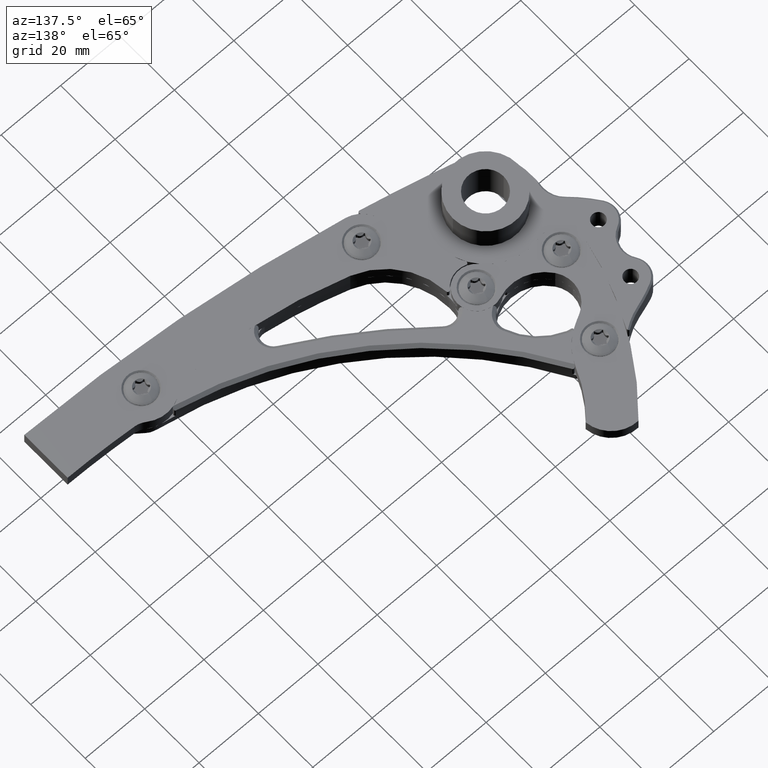
[diagram: clean part render]
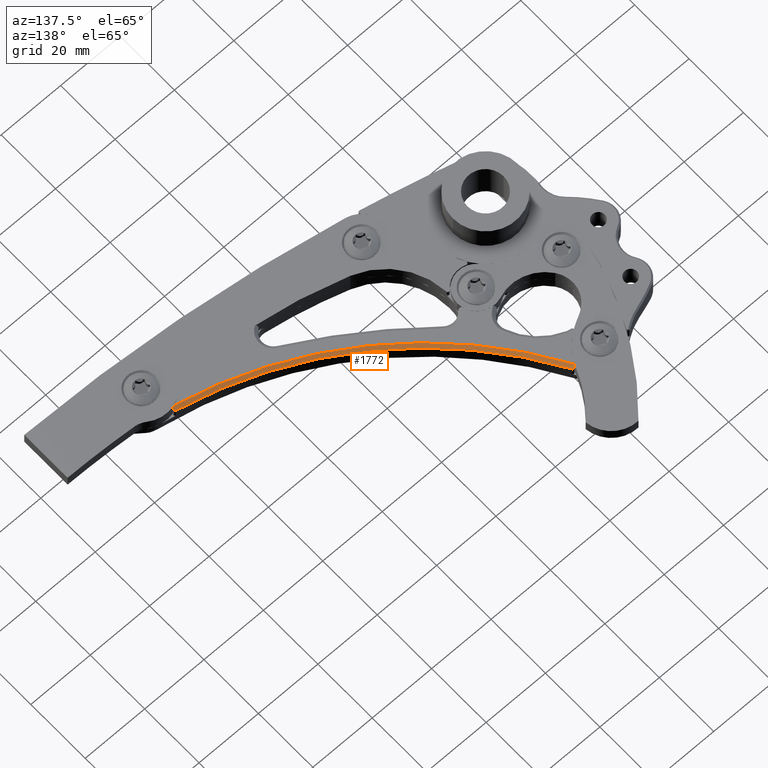
[diagram: same view with one face highlighted and labeled with its STEP entity id]
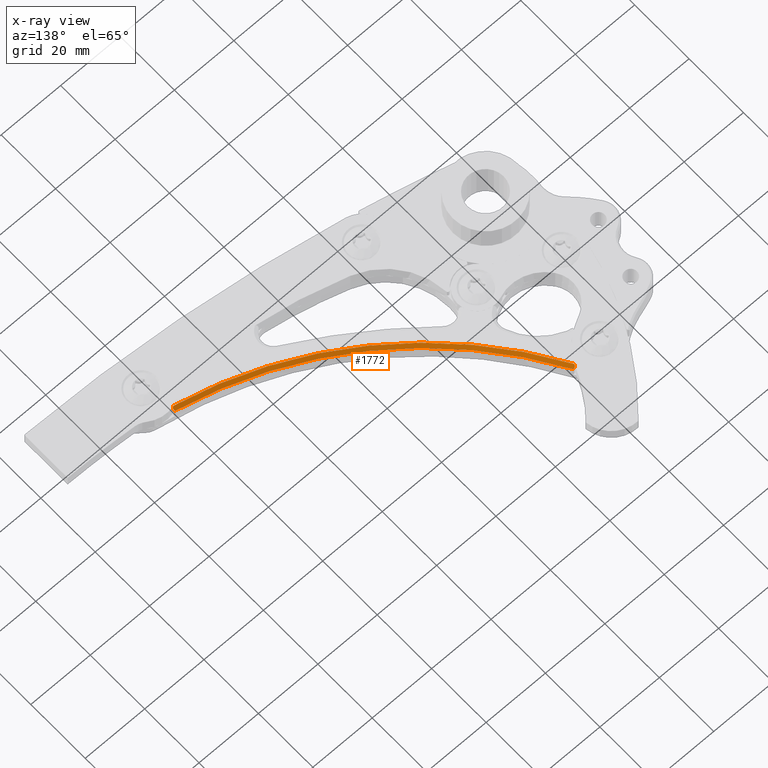
[diagram: x-ray of the same camera — body ghosted, the highlighted face saturated]
A machine part, auxiliary view. The second image highlights one B-rep face of the part: STEP entity #1772.
The next image is the same camera in x-ray: the body ghosted, the highlighted face saturated — about 0% of this face is hidden behind the body in this view.
In plain terms, the highlighted conical surface has half-angle 45 deg.
Its self-contained STEP definition (entity closure, byte-faithful):
#85 = AXIS2_PLACEMENT_3D ( 'NONE', #6157, #1608, #6748 ) ;
#201 = CARTESIAN_POINT ( 'NONE',  ( 4.655460665712401358, 4.198855636209188447, 0.2755905511811015396 ) ) ;
#459 = CARTESIAN_POINT ( 'NONE',  ( 3.710035285896913670, -0.4686890493338685126, 0.3135125269213288601 ) ) ;
#469 = DIRECTION ( 'NONE',  ( 1.000000000000000000, 0.0000000000000000000, 0.0000000000000000000 ) ) ;
#504 = EDGE_CURVE ( 'NONE', #6302, #8226, #8618, .T. ) ;
#563 = CARTESIAN_POINT ( 'NONE',  ( 3.711542541805872730, -0.4682681871625011816, 0.3128012265765175437 ) ) ;
#768 = DIRECTION ( 'NONE',  ( 0.0000000000000000000, 0.0000000000000000000, 1.000000000000000000 ) ) ;
#822 = EDGE_CURVE ( 'NONE', #6302, #1530, #3154, .T. ) ;
#1005 = CARTESIAN_POINT ( 'NONE',  ( 3.725815237189831652, -0.4537495572077700490, 0.2957543479049777324 ) ) ;
#1095 = B_SPLINE_CURVE_WITH_KNOTS ( 'NONE', 3,
 ( #5899, #459, #2688, #8485 ),
 .UNSPECIFIED., .F., .F.,
 ( 4, 4 ),
 ( 0.004185971748208181312, 0.004315272418240536159 ),
 .UNSPECIFIED. ) ;
#1120 = CARTESIAN_POINT ( 'NONE',  ( 0.5126495373526832600, 1.847109191132740191, 0.3149606299212601157 ) ) ;
#1530 = VERTEX_POINT ( 'NONE', #9296 ) ;
#1594 = CARTESIAN_POINT ( 'NONE',  ( 4.655460665712401358, 4.198855636209188447, 0.3149606299212601157 ) ) ;
#1603 = ORIENTED_EDGE ( 'NONE', *, *, #4720, .F. ) ;
#1608 = DIRECTION ( 'NONE',  ( -0.0000000000000000000, -0.0000000000000000000, -1.000000000000000000 ) ) ;
#1772 = ADVANCED_FACE ( 'NONE', ( #8399 ), #8188, .F. ) ;
#2184 = VERTEX_POINT ( 'NONE', #1120 ) ;
#2316 = CARTESIAN_POINT ( 'NONE',  ( 0.5389326963933287473, 1.867583669664773183, 0.2819973255024101899 ) ) ;
#2688 = CARTESIAN_POINT ( 'NONE',  ( 3.708532936126752499, -0.4691189804592746926, 0.3142323557264187772 ) ) ;
#2732 = CARTESIAN_POINT ( 'NONE',  ( 0.5519186082207196975, 1.857704803288277029, 0.2755905511811015396 ) ) ;
#3147 = CARTESIAN_POINT ( 'NONE',  ( 3.715432912547724786, -0.4317106696415892175, 0.2761986681464559945 ) ) ;
#3154 = CIRCLE ( 'NONE', #9763, 4.724409448818902568 ) ;
#3204 = VERTEX_POINT ( 'NONE', #7541 ) ;
#3229 = CARTESIAN_POINT ( 'NONE',  ( 3.725980777529556143, -0.4479269510536718624, 0.2900123052285762393 ) ) ;
#3419 = CARTESIAN_POINT ( 'NONE',  ( 0.5126495373526832600, 1.847109191132740191, 0.3149606299212601157 ) ) ;
#3577 = CARTESIAN_POINT ( 'NONE',  ( 3.712904341763594740, -0.4305762843733627609, 0.2755905511810982644 ) ) ;
#4454 = CARTESIAN_POINT ( 'NONE',  ( 0.5496400402207683999, 1.861698650881166595, 0.2755905511811017061 ) ) ;
#4519 = CARTESIAN_POINT ( 'NONE',  ( 0.5258060262981277821, 1.865744847697516029, 0.2943291340180458349 ) ) ;
#4559 = ORIENTED_EDGE ( 'NONE', *, *, #6277, .F. ) ;
#4567 = CARTESIAN_POINT ( 'NONE',  ( 0.5205956094310667526, 1.861934620011840291, 0.3007398952919842494 ) ) ;
#4639 = ORIENTED_EDGE ( 'NONE', *, *, #504, .T. ) ;
#4667 = EDGE_CURVE ( 'NONE', #3204, #1530, #8862, .T. ) ;
#4688 = AXIS2_PLACEMENT_3D ( 'NONE', #1594, #768, #5335 ) ;
#4720 = EDGE_CURVE ( 'NONE', #4796, #2184, #8250, .T. ) ;
#4796 = VERTEX_POINT ( 'NONE', #8389 ) ;
#4837 = EDGE_CURVE ( 'NONE', #3204, #4796, #1095, .T. ) ;
#5211 = CARTESIAN_POINT ( 'NONE',  ( 0.5519186082207196975, 1.857704803288277029, 0.2755905511811015396 ) ) ;
#5292 = DIRECTION ( 'NONE',  ( 0.0000000000000000000, 0.0000000000000000000, 1.000000000000000000 ) ) ;
#5335 = DIRECTION ( 'NONE',  ( 1.000000000000000000, 0.0000000000000000000, 0.0000000000000000000 ) ) ;
#5391 = CARTESIAN_POINT ( 'NONE',  ( 0.5169649363194065428, 1.856237289855030115, 0.3067050081878378576 ) ) ;
#5607 = CARTESIAN_POINT ( 'NONE',  ( 0.5460408832393798262, 1.864578118552023822, 0.2772971727697859379 ) ) ;
#5609 = ORIENTED_EDGE ( 'NONE', *, *, #4667, .T. ) ;
#5668 = CARTESIAN_POINT ( 'NONE',  ( 3.719882055496823270, -0.4640720951482365519, 0.3070406026064418925 ) ) ;
#5831 = CARTESIAN_POINT ( 'NONE',  ( 3.721278388584991603, -0.4364010041992207878, 0.2796373094850703733 ) ) ;
#5899 = CARTESIAN_POINT ( 'NONE',  ( 3.711542541805872730, -0.4682681871625011816, 0.3128012265765175437 ) ) ;
#6110 = CARTESIAN_POINT ( 'NONE',  ( 3.716396484892139362, -0.4669128492833589661, 0.3105105661980183118 ) ) ;
#6157 = CARTESIAN_POINT ( 'NONE',  ( 4.655460665712401358, 4.198855636209188447, 0.3149606299212601157 ) ) ;
#6277 = EDGE_CURVE ( 'NONE', #2184, #8226, #6311, .T. ) ;
#6302 = VERTEX_POINT ( 'NONE', #2732 ) ;
#6311 = B_SPLINE_CURVE_WITH_KNOTS ( 'NONE', 3,
 ( #3419, #8496, #6572, #5391 ),
 .UNSPECIFIED., .F., .F.,
 ( 4, 4 ),
 ( 1.734723475976807094E-18, 0.0003311789798411540211 ),
 .UNSPECIFIED. ) ;
#6572 = CARTESIAN_POINT ( 'NONE',  ( 0.5155451307802927374, 1.853178210619300659, 0.3094475271108980685 ) ) ;
#6748 = DIRECTION ( 'NONE',  ( 1.000000000000000000, 0.0000000000000000000, 0.0000000000000000000 ) ) ;
#6868 = EDGE_LOOP ( 'NONE', ( #7626, #4639, #4559, #1603, #8611, #5609 ) ) ;
#6988 = CARTESIAN_POINT ( 'NONE',  ( 3.725755920907376062, -0.4459793512175138641, 0.2881466003679413745 ) ) ;
#7443 = CARTESIAN_POINT ( 'NONE',  ( 3.723789857786726110, -0.4400997551998481194, 0.2827680529690942413 ) ) ;
#7541 = CARTESIAN_POINT ( 'NONE',  ( 3.711542541805872730, -0.4682681871625011816, 0.3128012265765175437 ) ) ;
#7626 = ORIENTED_EDGE ( 'NONE', *, *, #822, .F. ) ;
#7760 = CARTESIAN_POINT ( 'NONE',  ( 3.724666011445098679, -0.4420684149042015121, 0.2845259971460036286 ) ) ;
#7808 = CARTESIAN_POINT ( 'NONE',  ( 0.5287743975007854758, 1.866976200539973263, 0.2911388851061408323 ) ) ;
#8188 = CONICAL_SURFACE ( 'NONE', #4688, 4.763779527559059979, 0.7853981633974345122 ) ;
#8226 = VERTEX_POINT ( 'NONE', #9506 ) ;
#8250 = CIRCLE ( 'NONE', #85, 4.763779527559059979 ) ;
#8376 = CARTESIAN_POINT ( 'NONE',  ( 0.5353575248903147399, 1.867906540197463716, 0.2849504358491480871 ) ) ;
#8389 = CARTESIAN_POINT ( 'NONE',  ( 3.707035447108792514, -0.4695579050173754876, 0.3149606299212601157 ) ) ;
#8399 = FACE_OUTER_BOUND ( 'NONE', #6868, .T. ) ;
#8485 = CARTESIAN_POINT ( 'NONE',  ( 3.707035447108792514, -0.4695579050173754876, 0.3149606299212601157 ) ) ;
#8496 = CARTESIAN_POINT ( 'NONE',  ( 0.5141065943987532805, 1.850135588499993711, 0.3121994544052970055 ) ) ;
#8611 = ORIENTED_EDGE ( 'NONE', *, *, #4837, .F. ) ;
#8618 = B_SPLINE_CURVE_WITH_KNOTS ( 'NONE', 3,
 ( #5211, #4454, #5607, #2316, #8376, #7808, #4519, #4567, #8814, #9074 ),
 .UNSPECIFIED., .F., .F.,
 ( 4, 2, 2, 2, 4 ),
 ( 0.0000000000000000000, 0.0003443132968710752571, 0.0006886265937421505142, 0.001032939890613225825, 0.001377253187484301028 ),
 .UNSPECIFIED. ) ;
#8749 = CARTESIAN_POINT ( 'NONE',  ( 3.719622255152374546, -0.4346395137330422709, 0.2782378338376241822 ) ) ;
#8814 = CARTESIAN_POINT ( 'NONE',  ( 0.5184576977636884410, 1.859453558148331132, 0.3038215664799645555 ) ) ;
#8862 = B_SPLINE_CURVE_WITH_KNOTS ( 'NONE', 3,
 ( #563, #6110, #5668, #8866, #1005, #3229, #6988, #7760, #7443, #5831, #8749, #3147, #3577, #9154 ),
 .UNSPECIFIED., .F., .F.,
 ( 4, 2, 2, 2, 2, 2, 4 ),
 ( 1.939479807224432123E-17, 0.0004144325838833924332, 0.0008288651677667654592, 0.001036081459708454574, 0.001243297751650144015, 0.001450514043591833021, 0.001657730335533522462 ),
 .UNSPECIFIED. ) ;
#8866 = CARTESIAN_POINT ( 'NONE',  ( 3.724596827086076978, -0.4575047203518443073, 0.2996752298223693822 ) ) ;
#9074 = CARTESIAN_POINT ( 'NONE',  ( 0.5169649363194065428, 1.856237289855030115, 0.3067050081878378576 ) ) ;
#9154 = CARTESIAN_POINT ( 'NONE',  ( 3.710187148594882967, -0.4300214001707633460, 0.2755905511811015396 ) ) ;
#9296 = CARTESIAN_POINT ( 'NONE',  ( 3.710187148594882967, -0.4300214001707633460, 0.2755905511811015396 ) ) ;
#9506 = CARTESIAN_POINT ( 'NONE',  ( 0.5169649363194065428, 1.856237289855030115, 0.3067050081878378576 ) ) ;
#9763 = AXIS2_PLACEMENT_3D ( 'NONE', #201, #5292, #469 ) ;